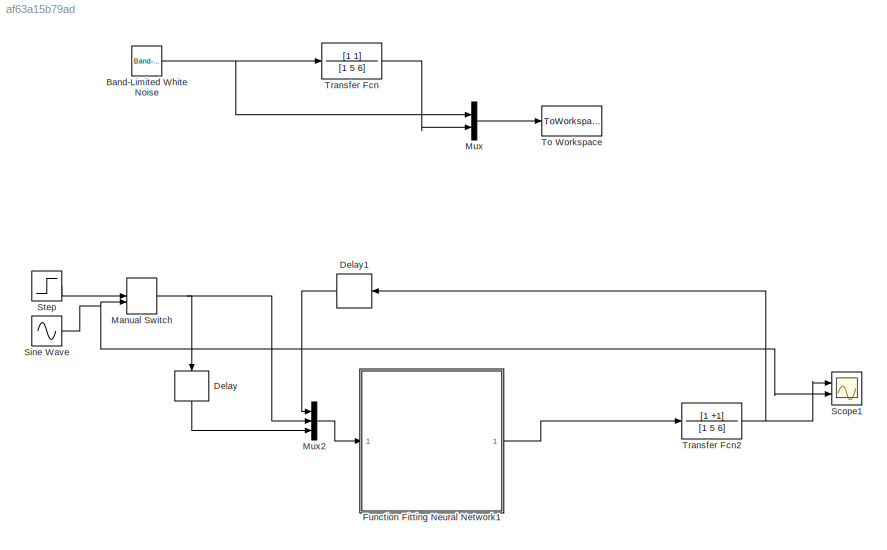
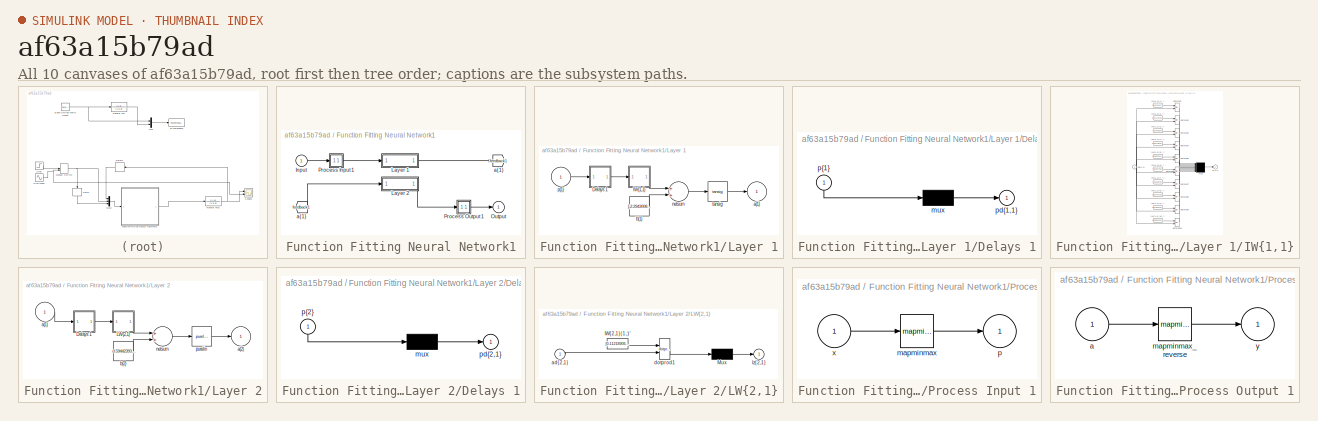
[diagram: thumbnail index - all 10 canvases of the model, root first then tree order]
MODEL slx_af63a15b79ad
KIND model
BLOCK [Reference] Band-Limited White Noise  REF=simulink/Sources/Band-Limited
White Noise
  Cov = 1
  Ports = [0, 1]
  SourceBlock = simulink/Sources/Band-Limited\nWhite Noise
  SourceType = Band-Limited White Noise.
  Ts = 0.01
  VectorParams1D = on
  seed = [23341]
BLOCK [Delay] Delay
  DelayLength = 1
  InputPortMap = u0
  Ports = [1, 1]
  SampleTime = 0.01
BLOCK [Delay] Delay1
  DelayLength = 1
  InputPortMap = u0
  Ports = [1, 1]
  SampleTime = 0.01
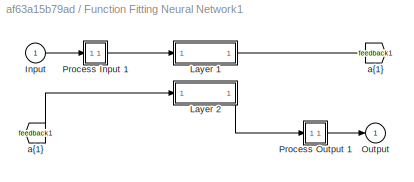
BLOCK [SubSystem] Function Fitting Neural Network1
  Ports = [1, 1]
  RequestExecContextInheritance = off
BLOCK [From] Function Fitting Neural Network1/ a{1} 
  GotoTag = feedback1
BLOCK [Inport] Function Fitting Neural Network1/Input
  IconDisplay = Port number
  PortDimensions = 3
BLOCK [SubSystem] Function Fitting Neural Network1/Layer 1
  Ports = [1, 1]
  RequestExecContextInheritance = off
BLOCK [SubSystem] Function Fitting Neural Network1/Layer 1/Delays 1
  Ports = [1, 1]
  RequestExecContextInheritance = off
BLOCK [Mux] Function Fitting Neural Network1/Layer 1/Delays 1/mux
  Inputs = 1
  Ports = [1, 1]
BLOCK [Outport] Function Fitting Neural Network1/Layer 1/Delays 1/pd{1,1}
  IconDisplay = Port number
BLOCK [Inport] Function Fitting Neural Network1/Layer 1/Delays 1/p{1}
  IconDisplay = Port number
  PortDimensions = 3
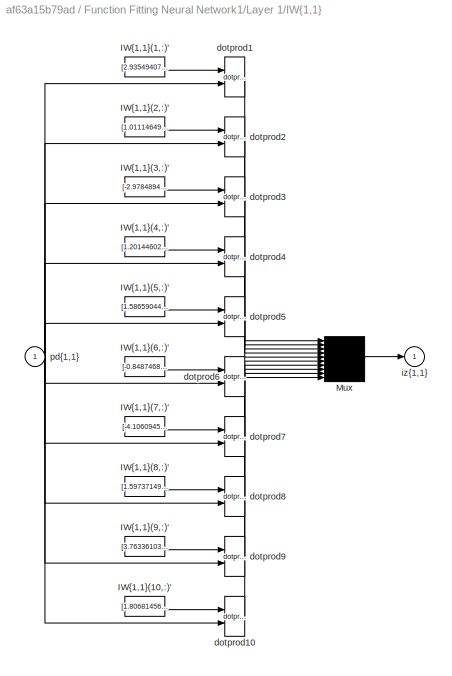
BLOCK [SubSystem] Function Fitting Neural Network1/Layer 1/IW{1,1}
  Ports = [1, 1]
  RequestExecContextInheritance = off
BLOCK [Constant] Function Fitting Neural Network1/Layer 1/IW{1,1}/IW{1,1}(1,:)'
  Value = [2.9354940775223062;1.3596712109624209;1.419026579379586]
BLOCK [Constant] Function Fitting Neural Network1/Layer 1/IW{1,1}/IW{1,1}(10,:)'
  Value = [1.8068145648233354;1.46411352734294;-1.4070680499191945]
BLOCK [Constant] Function Fitting Neural Network1/Layer 1/IW{1,1}/IW{1,1}(2,:)'
  Value = [1.011146498506948;5.2845514526644282;-2.8948628616964287]
BLOCK [Constant] Function Fitting Neural Network1/Layer 1/IW{1,1}/IW{1,1}(3,:)'
  Value = [-2.9784894775321442;-0.12995297321398247;0.52582083125574131]
BLOCK [Constant] Function Fitting Neural Network1/Layer 1/IW{1,1}/IW{1,1}(4,:)'
  Value = [1.20144602466809;-2.5227819678850198;1.6824107158043407]
BLOCK [Constant] Function Fitting Neural Network1/Layer 1/IW{1,1}/IW{1,1}(5,:)'
  Value = [1.5865904488202733;0.93152448786540509;2.2033850507626367]
BLOCK [Constant] Function Fitting Neural Network1/Layer 1/IW{1,1}/IW{1,1}(6,:)'
  Value = [-0.8487468177313412;-2.8977181106524603;2.6640989330748499]
BLOCK [Constant] Function Fitting Neural Network1/Layer 1/IW{1,1}/IW{1,1}(7,:)'
  Value = [-4.1060945339827244;-0.58389733363059926;0.020390001474110173]
BLOCK [Constant] Function Fitting Neural Network1/Layer 1/IW{1,1}/IW{1,1}(8,:)'
  Value = [1.5973714900401901;0.48954395434786396;0.90199028987152363]
BLOCK [Constant] Function Fitting Neural Network1/Layer 1/IW{1,1}/IW{1,1}(9,:)'
  Value = [3.7633610301435807;2.1369578185413549;2.0972367025800858]
BLOCK [Mux] Function Fitting Neural Network1/Layer 1/IW{1,1}/Mux
  Inputs = 10
  Ports = [10, 1]
BLOCK [Reference] Function Fitting Neural Network1/Layer 1/IW{1,1}/dotprod1  REF=neural/Weight Functions/dotprod
  Ports = [2, 1]
  SourceBlock = neural/Weight Functions/dotprod
  SourceType = DOTPROD
BLOCK [Reference] Function Fitting Neural Network1/Layer 1/IW{1,1}/dotprod10  REF=neural/Weight Functions/dotprod
  Ports = [2, 1]
  SourceBlock = neural/Weight Functions/dotprod
  SourceType = DOTPROD
BLOCK [Reference] Function Fitting Neural Network1/Layer 1/IW{1,1}/dotprod2  REF=neural/Weight Functions/dotprod
  Ports = [2, 1]
  SourceBlock = neural/Weight Functions/dotprod
  SourceType = DOTPROD
BLOCK [Reference] Function Fitting Neural Network1/Layer 1/IW{1,1}/dotprod3  REF=neural/Weight Functions/dotprod
  Ports = [2, 1]
  SourceBlock = neural/Weight Functions/dotprod
  SourceType = DOTPROD
BLOCK [Reference] Function Fitting Neural Network1/Layer 1/IW{1,1}/dotprod4  REF=neural/Weight Functions/dotprod
  Ports = [2, 1]
  SourceBlock = neural/Weight Functions/dotprod
  SourceType = DOTPROD
BLOCK [Reference] Function Fitting Neural Network1/Layer 1/IW{1,1}/dotprod5  REF=neural/Weight Functions/dotprod
  Ports = [2, 1]
  SourceBlock = neural/Weight Functions/dotprod
  SourceType = DOTPROD
BLOCK [Reference] Function Fitting Neural Network1/Layer 1/IW{1,1}/dotprod6  REF=neural/Weight Functions/dotprod
  Ports = [2, 1]
  SourceBlock = neural/Weight Functions/dotprod
  SourceType = DOTPROD
BLOCK [Reference] Function Fitting Neural Network1/Layer 1/IW{1,1}/dotprod7  REF=neural/Weight Functions/dotprod
  Ports = [2, 1]
  SourceBlock = neural/Weight Functions/dotprod
  SourceType = DOTPROD
BLOCK [Reference] Function Fitting Neural Network1/Layer 1/IW{1,1}/dotprod8  REF=neural/Weight Functions/dotprod
  Ports = [2, 1]
  SourceBlock = neural/Weight Functions/dotprod
  SourceType = DOTPROD
BLOCK [Reference] Function Fitting Neural Network1/Layer 1/IW{1,1}/dotprod9  REF=neural/Weight Functions/dotprod
  Ports = [2, 1]
  SourceBlock = neural/Weight Functions/dotprod
  SourceType = DOTPROD
BLOCK [Outport] Function Fitting Neural Network1/Layer 1/IW{1,1}/iz{1,1}
  IconDisplay = Port number
BLOCK [Inport] Function Fitting Neural Network1/Layer 1/IW{1,1}/pd{1,1}
  IconDisplay = Port number
  PortDimensions = 3
BLOCK [Outport] Function Fitting Neural Network1/Layer 1/a{1}
  IconDisplay = Port number
  InitialOutput = [0;0;0;0;0;0;0;0;0;0]
BLOCK [Constant] Function Fitting Neural Network1/Layer 1/b{1}
  Value = [-2.2943008502133244;-5.8334021837928258;1.0004184928894579;-1.2641487814466137;-0.77707178200510785;0.26493748371338577;-3.8790307645560977;2.6494243310430448;-1.0513320867015847;4.1946583023358235]
BLOCK [Sum] Function Fitting Neural Network1/Layer 1/netsum
  Inputs = 2
  Ports = [2, 1]
BLOCK [Inport] Function Fitting Neural Network1/Layer 1/p{1}
  IconDisplay = Port number
  PortDimensions = 3
BLOCK [Reference] Function Fitting Neural Network1/Layer 1/tansig  REF=neural/Transfer Functions/tansig
  Ports = [1, 1]
  SourceBlock = neural/Transfer Functions/tansig
  SourceType = TANSIG
BLOCK [SubSystem] Function Fitting Neural Network1/Layer 2
  Ports = [1, 1]
  RequestExecContextInheritance = off
BLOCK [SubSystem] Function Fitting Neural Network1/Layer 2/Delays 1
  Ports = [1, 1]
  RequestExecContextInheritance = off
BLOCK [Mux] Function Fitting Neural Network1/Layer 2/Delays 1/mux
  Inputs = 1
  Ports = [1, 1]
BLOCK [Outport] Function Fitting Neural Network1/Layer 2/Delays 1/pd{2,1}
  IconDisplay = Port number
BLOCK [Inport] Function Fitting Neural Network1/Layer 2/Delays 1/p{2}
  IconDisplay = Port number
  PortDimensions = 10
BLOCK [SubSystem] Function Fitting Neural Network1/Layer 2/LW{2,1}
  Ports = [1, 1]
  RequestExecContextInheritance = off
BLOCK [Constant] Function Fitting Neural Network1/Layer 2/LW{2,1}/IW{2,1}(1,:)'
  Value = [0.11218906609091117;-0.68536196166654317;0.21529414308943934;0.033436877515746068;-0.074982688589220498;0.010030714544509253;0.60474153595005475;0.81880756054007631;0.11164863413479548;-0.32743987611010811]
BLOCK [Mux] Function Fitting Neural Network1/Layer 2/LW{2,1}/Mux
  Inputs = 1
  Ports = [1, 1]
BLOCK [Inport] Function Fitting Neural Network1/Layer 2/LW{2,1}/ad{2,1}
  IconDisplay = Port number
  PortDimensions = 10
BLOCK [Reference] Function Fitting Neural Network1/Layer 2/LW{2,1}/dotprod1  REF=neural/Weight Functions/dotprod
  Ports = [2, 1]
  SourceBlock = neural/Weight Functions/dotprod
  SourceType = DOTPROD
BLOCK [Outport] Function Fitting Neural Network1/Layer 2/LW{2,1}/lz{2,1}
  IconDisplay = Port number
BLOCK [Inport] Function Fitting Neural Network1/Layer 2/a{1} 
  IconDisplay = Port number
  PortDimensions = 10
BLOCK [Outport] Function Fitting Neural Network1/Layer 2/a{2}
  IconDisplay = Port number
  InitialOutput = 0
BLOCK [Constant] Function Fitting Neural Network1/Layer 2/b{2}
  Value = -0.5944239322846766
BLOCK [Sum] Function Fitting Neural Network1/Layer 2/netsum
  Inputs = 2
  Ports = [2, 1]
BLOCK [Reference] Function Fitting Neural Network1/Layer 2/purelin  REF=neural/Transfer Functions/purelin
  Ports = [1, 1]
  SourceBlock = neural/Transfer Functions/purelin
  SourceType = PURELIN
BLOCK [Outport] Function Fitting Neural Network1/Output
  IconDisplay = Port number
  InitialOutput = 0
BLOCK [SubSystem] Function Fitting Neural Network1/Process Input 1
  Ports = [1, 1]
  RequestExecContextInheritance = off
BLOCK [Reference] Function Fitting Neural Network1/Process Input 1/mapminmax  REF=neural/Processing Functions/mapminmax
  Ports = [1, 1]
  SourceBlock = neural/Processing Functions/mapminmax
  SourceType = MAPMINMAX Preprocess
  xmax = [9.9608847817884865;39.43891729008449;9.9608847817884865]
  xmin = [-14.482959341035965;-36.870835793779278;-14.482959341035965]
  ymax = 1
  ymin = -1
BLOCK [Outport] Function Fitting Neural Network1/Process Input 1/p
  IconDisplay = Port number
  PortDimensions = 3
BLOCK [Inport] Function Fitting Neural Network1/Process Input 1/x
  IconDisplay = Port number
  PortDimensions = 3
BLOCK [SubSystem] Function Fitting Neural Network1/Process Output 1
  Ports = [1, 1]
  RequestExecContextInheritance = off
BLOCK [Inport] Function Fitting Neural Network1/Process Output 1/a
  IconDisplay = Port number
  PortDimensions = 1
BLOCK [Reference] Function Fitting Neural Network1/Process Output 1/mapminmax_reverse  REF=neural/Processing Functions/mapminmax_reverse
  Ports = [1, 1]
  SourceBlock = neural/Processing Functions/mapminmax_reverse
  SourceType = MAPMINMAX Reverse Process
  xmax = 39.43891729008449
  xmin = -36.870835793779278
  ymax = 1
  ymin = -1
BLOCK [Outport] Function Fitting Neural Network1/Process Output 1/y
  IconDisplay = Port number
  PortDimensions = 1
BLOCK [Goto] Function Fitting Neural Network1/a{1}
  GotoTag = feedback1
BLOCK [ManualSwitch] Manual Switch
  CurrentSetting = 0
BLOCK [Mux] Mux
  DisplayOption = bar
  Inputs = 2
  Ports = [2, 1]
BLOCK [Mux] Mux2
  DisplayOption = bar
  Inputs = 3
  Ports = [3, 1]
BLOCK [Scope] Scope1
  DataFormat = StructureWithTime
  Floating = off
  NumInputPorts = 2
  Ports = [2]
  SampleTime = 0
  SaveName = ScopeData1
  ShowLegends = off
  TimeRange = 50
  YMax = 6.5~5
  YMin = 4~-5
BLOCK [Sin] Sine Wave
  Ports = [0, 1]
  SampleTime = 0
BLOCK [Step] Step
  SampleTime = 0
BLOCK [ToWorkspace] To Workspace
  FixptAsFi = on
  MaxDataPoints = inf
  Ports = [1]
  SampleTime = -1
  Save2DSignal = 3-D array (concatenate along third dimension)
  SaveFormat = Timeseries
  VariableName = simout
BLOCK [TransferFcn] Transfer Fcn
  Denominator = [1 5 6]
  Numerator = [1 1]
BLOCK [TransferFcn] Transfer Fcn2
  Denominator = [1 5 6]
  Numerator = [1 +1]
NET Band-Limited White Noise:1 -> Mux:1, Transfer Fcn:1
LINE Delay1:1 -> Mux2:1
LINE Delay:1 -> Mux2:3
LINE Function Fitting Neural Network1/ a{1} :1 -> Function Fitting Neural Network1/Layer 2:1
LINE Function Fitting Neural Network1/Input:1 -> Function Fitting Neural Network1/Process Input 1:1
LINE Function Fitting Neural Network1/Layer 1/Delays 1/mux:1 -> Function Fitting Neural Network1/Layer 1/Delays 1/pd{1,1}:1
LINE Function Fitting Neural Network1/Layer 1/Delays 1/p{1}:1 -> Function Fitting Neural Network1/Layer 1/Delays 1/mux:1
LINE Function Fitting Neural Network1/Layer 1/Delays 1:1 -> Function Fitting Neural Network1/Layer 1/IW{1,1}:1
LINE Function Fitting Neural Network1/Layer 1/IW{1,1}/IW{1,1}(1,:)':1 -> Function Fitting Neural Network1/Layer 1/IW{1,1}/dotprod1:1
LINE Function Fitting Neural Network1/Layer 1/IW{1,1}/IW{1,1}(10,:)':1 -> Function Fitting Neural Network1/Layer 1/IW{1,1}/dotprod10:1
LINE Function Fitting Neural Network1/Layer 1/IW{1,1}/IW{1,1}(2,:)':1 -> Function Fitting Neural Network1/Layer 1/IW{1,1}/dotprod2:1
LINE Function Fitting Neural Network1/Layer 1/IW{1,1}/IW{1,1}(3,:)':1 -> Function Fitting Neural Network1/Layer 1/IW{1,1}/dotprod3:1
LINE Function Fitting Neural Network1/Layer 1/IW{1,1}/IW{1,1}(4,:)':1 -> Function Fitting Neural Network1/Layer 1/IW{1,1}/dotprod4:1
LINE Function Fitting Neural Network1/Layer 1/IW{1,1}/IW{1,1}(5,:)':1 -> Function Fitting Neural Network1/Layer 1/IW{1,1}/dotprod5:1
LINE Function Fitting Neural Network1/Layer 1/IW{1,1}/IW{1,1}(6,:)':1 -> Function Fitting Neural Network1/Layer 1/IW{1,1}/dotprod6:1
LINE Function Fitting Neural Network1/Layer 1/IW{1,1}/IW{1,1}(7,:)':1 -> Function Fitting Neural Network1/Layer 1/IW{1,1}/dotprod7:1
LINE Function Fitting Neural Network1/Layer 1/IW{1,1}/IW{1,1}(8,:)':1 -> Function Fitting Neural Network1/Layer 1/IW{1,1}/dotprod8:1
LINE Function Fitting Neural Network1/Layer 1/IW{1,1}/IW{1,1}(9,:)':1 -> Function Fitting Neural Network1/Layer 1/IW{1,1}/dotprod9:1
LINE Function Fitting Neural Network1/Layer 1/IW{1,1}/Mux:1 -> Function Fitting Neural Network1/Layer 1/IW{1,1}/iz{1,1}:1
LINE Function Fitting Neural Network1/Layer 1/IW{1,1}/dotprod10:1 -> Function Fitting Neural Network1/Layer 1/IW{1,1}/Mux:10
LINE Function Fitting Neural Network1/Layer 1/IW{1,1}/dotprod1:1 -> Function Fitting Neural Network1/Layer 1/IW{1,1}/Mux:1
LINE Function Fitting Neural Network1/Layer 1/IW{1,1}/dotprod2:1 -> Function Fitting Neural Network1/Layer 1/IW{1,1}/Mux:2
LINE Function Fitting Neural Network1/Layer 1/IW{1,1}/dotprod3:1 -> Function Fitting Neural Network1/Layer 1/IW{1,1}/Mux:3
LINE Function Fitting Neural Network1/Layer 1/IW{1,1}/dotprod4:1 -> Function Fitting Neural Network1/Layer 1/IW{1,1}/Mux:4
LINE Function Fitting Neural Network1/Layer 1/IW{1,1}/dotprod5:1 -> Function Fitting Neural Network1/Layer 1/IW{1,1}/Mux:5
LINE Function Fitting Neural Network1/Layer 1/IW{1,1}/dotprod6:1 -> Function Fitting Neural Network1/Layer 1/IW{1,1}/Mux:6
LINE Function Fitting Neural Network1/Layer 1/IW{1,1}/dotprod7:1 -> Function Fitting Neural Network1/Layer 1/IW{1,1}/Mux:7
LINE Function Fitting Neural Network1/Layer 1/IW{1,1}/dotprod8:1 -> Function Fitting Neural Network1/Layer 1/IW{1,1}/Mux:8
LINE Function Fitting Neural Network1/Layer 1/IW{1,1}/dotprod9:1 -> Function Fitting Neural Network1/Layer 1/IW{1,1}/Mux:9
NET Function Fitting Neural Network1/Layer 1/IW{1,1}/pd{1,1}:1 -> Function Fitting Neural Network1/Layer 1/IW{1,1}/dotprod10:2, Function Fitting Neural Network1/Layer 1/IW{1,1}/dotprod1:2, Function Fitting Neural Network1/Layer 1/IW{1,1}/dotprod2:2, Function Fitting Neural Network1/Layer 1/IW{1,1}/dotprod3:2, Function Fitting Neural Network1/Layer 1/IW{1,1}/dotprod4:2, Function Fitting Neural Network1/Layer 1/IW{1,1}/dotprod5:2, Function Fitting Neural Network1/Layer 1/IW{1,1}/dotprod6:2, Function Fitting Neural Network1/Layer 1/IW{1,1}/dotprod7:2, Function Fitting Neural Network1/Layer 1/IW{1,1}/dotprod8:2, Function Fitting Neural Network1/Layer 1/IW{1,1}/dotprod9:2
LINE Function Fitting Neural Network1/Layer 1/IW{1,1}:1 -> Function Fitting Neural Network1/Layer 1/netsum:1
LINE Function Fitting Neural Network1/Layer 1/b{1}:1 -> Function Fitting Neural Network1/Layer 1/netsum:2
LINE Function Fitting Neural Network1/Layer 1/netsum:1 -> Function Fitting Neural Network1/Layer 1/tansig:1
LINE Function Fitting Neural Network1/Layer 1/p{1}:1 -> Function Fitting Neural Network1/Layer 1/Delays 1:1
LINE Function Fitting Neural Network1/Layer 1/tansig:1 -> Function Fitting Neural Network1/Layer 1/a{1}:1
LINE Function Fitting Neural Network1/Layer 1:1 -> Function Fitting Neural Network1/a{1}:1
LINE Function Fitting Neural Network1/Layer 2/Delays 1/mux:1 -> Function Fitting Neural Network1/Layer 2/Delays 1/pd{2,1}:1
LINE Function Fitting Neural Network1/Layer 2/Delays 1/p{2}:1 -> Function Fitting Neural Network1/Layer 2/Delays 1/mux:1
LINE Function Fitting Neural Network1/Layer 2/Delays 1:1 -> Function Fitting Neural Network1/Layer 2/LW{2,1}:1
LINE Function Fitting Neural Network1/Layer 2/LW{2,1}/IW{2,1}(1,:)':1 -> Function Fitting Neural Network1/Layer 2/LW{2,1}/dotprod1:1
LINE Function Fitting Neural Network1/Layer 2/LW{2,1}/Mux:1 -> Function Fitting Neural Network1/Layer 2/LW{2,1}/lz{2,1}:1
LINE Function Fitting Neural Network1/Layer 2/LW{2,1}/ad{2,1}:1 -> Function Fitting Neural Network1/Layer 2/LW{2,1}/dotprod1:2
LINE Function Fitting Neural Network1/Layer 2/LW{2,1}/dotprod1:1 -> Function Fitting Neural Network1/Layer 2/LW{2,1}/Mux:1
LINE Function Fitting Neural Network1/Layer 2/LW{2,1}:1 -> Function Fitting Neural Network1/Layer 2/netsum:1
LINE Function Fitting Neural Network1/Layer 2/a{1} :1 -> Function Fitting Neural Network1/Layer 2/Delays 1:1
LINE Function Fitting Neural Network1/Layer 2/b{2}:1 -> Function Fitting Neural Network1/Layer 2/netsum:2
LINE Function Fitting Neural Network1/Layer 2/netsum:1 -> Function Fitting Neural Network1/Layer 2/purelin:1
LINE Function Fitting Neural Network1/Layer 2/purelin:1 -> Function Fitting Neural Network1/Layer 2/a{2}:1
LINE Function Fitting Neural Network1/Layer 2:1 -> Function Fitting Neural Network1/Process Output 1:1
LINE Function Fitting Neural Network1/Process Input 1/mapminmax:1 -> Function Fitting Neural Network1/Process Input 1/p:1
LINE Function Fitting Neural Network1/Process Input 1/x:1 -> Function Fitting Neural Network1/Process Input 1/mapminmax:1
LINE Function Fitting Neural Network1/Process Input 1:1 -> Function Fitting Neural Network1/Layer 1:1
LINE Function Fitting Neural Network1/Process Output 1/a:1 -> Function Fitting Neural Network1/Process Output 1/mapminmax_reverse:1
LINE Function Fitting Neural Network1/Process Output 1/mapminmax_reverse:1 -> Function Fitting Neural Network1/Process Output 1/y:1
LINE Function Fitting Neural Network1/Process Output 1:1 -> Function Fitting Neural Network1/Output:1
LINE Function Fitting Neural Network1:1 -> Transfer Fcn2:1
NET Manual Switch:1 -> Delay:1, Mux2:2
LINE Mux2:1 -> Function Fitting Neural Network1:1
LINE Mux:1 -> To Workspace:1
NET Sine Wave:1 -> Manual Switch:2, Scope1:2
LINE Step:1 -> Manual Switch:1
NET Transfer Fcn2:1 -> Delay1:1, Scope1:1
LINE Transfer Fcn:1 -> Mux:2
note: NET lines group one-source signal fan-out (src -> all destinations, sorted); 1:1 wires keep LINE
